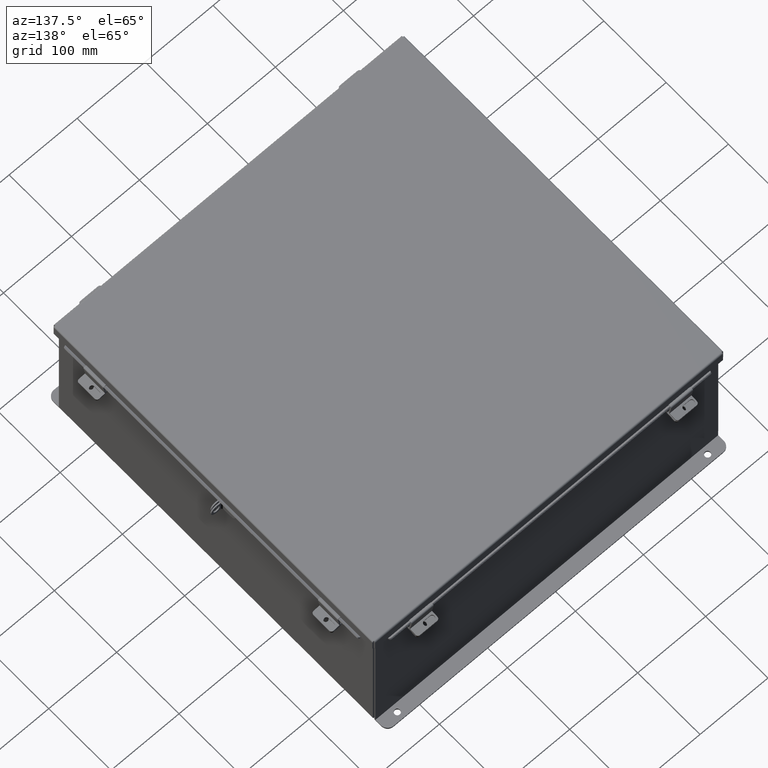
[diagram: clean part render]
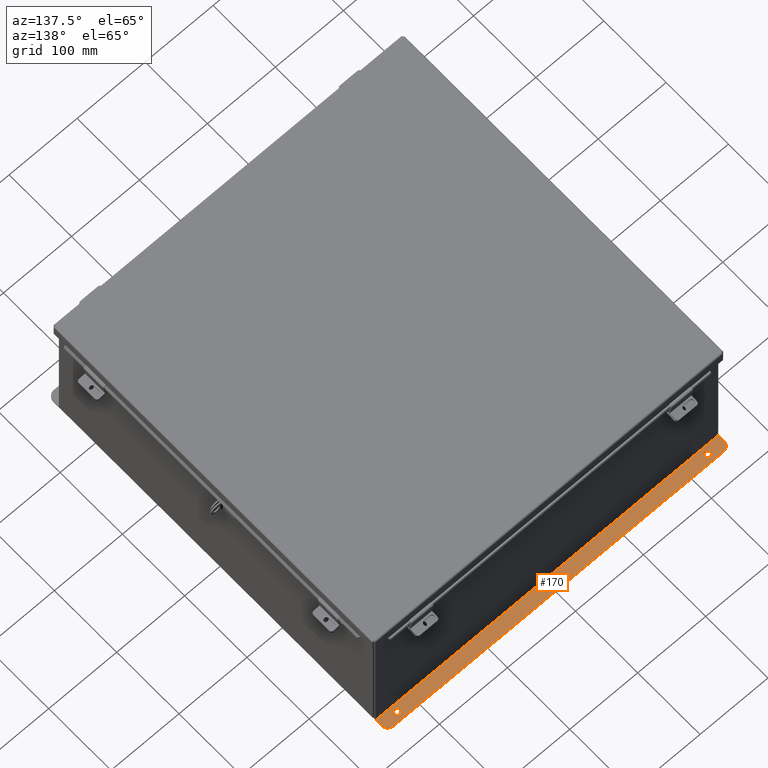
[diagram: same view with one face highlighted and labeled with its STEP entity id]
A machine part, auxiliary view. The second image highlights one B-rep face of the part: STEP entity #170.
In plain terms, the highlighted planar face has unit normal (0, 0, 1).
Its self-contained STEP definition (entity closure, byte-faithful):
#60 = DIRECTION ( 'NONE',  ( -0.0000000000000000000, 1.000000000000000000, -3.702694488566362300E-015 ) ) ;
#170 = ADVANCED_FACE ( 'NONE', ( #10029, #5442, #781 ), #13797, .T. ) ;
#408 = VECTOR ( 'NONE', #10891, 39.37007874015748100 ) ;
#477 = DIRECTION ( 'NONE',  ( 0.0000000000000000000, -1.000000000000000000, 4.370956789862820400E-015 ) ) ;
#781 = FACE_OUTER_BOUND ( 'NONE', #11266, .T. ) ;
#938 = LINE ( 'NONE', #7779, #408 ) ;
#1677 = VERTEX_POINT ( 'NONE', #11654 ) ;
#2113 = AXIS2_PLACEMENT_3D ( 'NONE', #3318, #17659, #20947 ) ;
#2523 = CARTESIAN_POINT ( 'NONE',  ( 8.987799999999998200, 0.3628000000000008400, -4.112300000000002100 ) ) ;
#3101 = ORIENTED_EDGE ( 'NONE', *, *, #8719, .T. ) ;
#3208 = AXIS2_PLACEMENT_3D ( 'NONE', #19823, #9454, #21549 ) ;
#3318 = CARTESIAN_POINT ( 'NONE',  ( 9.550299999999998200, 0.3628000000000008400, -4.112300000000002100 ) ) ;
#3501 = EDGE_CURVE ( 'NONE', #15866, #18772, #938, .T. ) ;
#3555 = CARTESIAN_POINT ( 'NONE',  ( 0.0000000000000000000, -1.529834876451987200E-014, -4.112300000000001200 ) ) ;
#3661 = EDGE_CURVE ( 'NONE', #1677, #18772, #11519, .T. ) ;
#3742 = CIRCLE ( 'NONE', #8922, 0.3750000000000000600 ) ;
#3773 = LINE ( 'NONE', #3847, #12436 ) ;
#3785 = ORIENTED_EDGE ( 'NONE', *, *, #17163, .F. ) ;
#3847 = CARTESIAN_POINT ( 'NONE',  ( 9.925299999999998200, 0.0000000000000000000, -4.112300000000001200 ) ) ;
#4273 = DIRECTION ( 'NONE',  ( 0.0000000000000000000, -1.000000000000000000, 3.502369222646487400E-015 ) ) ;
#4341 = CARTESIAN_POINT ( 'NONE',  ( 9.925299999999998200, 0.01300000000000010700, -4.112300000000001200 ) ) ;
#4342 = ORIENTED_EDGE ( 'NONE', *, *, #3501, .F. ) ;
#4427 = AXIS2_PLACEMENT_3D ( 'NONE', #2523, #14661, #4273 ) ;
#5083 = ORIENTED_EDGE ( 'NONE', *, *, #7445, .T. ) ;
#5442 = FACE_BOUND ( 'NONE', #10876, .T. ) ;
#5454 = CARTESIAN_POINT ( 'NONE',  ( 8.987799999999998200, 0.2068000000000006800, -4.112300000000001200 ) ) ;
#5458 = CIRCLE ( 'NONE', #7778, 0.1560000000000001700 ) ;
#5584 = VERTEX_POINT ( 'NONE', #20857 ) ;
#5630 = DIRECTION ( 'NONE',  ( -0.0000000000000000000, -1.000000000000000000, 3.702694488566362300E-015 ) ) ;
#6102 = DIRECTION ( 'NONE',  ( -1.000000000000000000, -2.752408485047568600E-017, 1.019132772786892100E-031 ) ) ;
#6111 = ORIENTED_EDGE ( 'NONE', *, *, #14126, .T. ) ;
#6647 = VERTEX_POINT ( 'NONE', #6654 ) ;
#6654 = CARTESIAN_POINT ( 'NONE',  ( -9.925300000000001800, 0.3628000000000008400, -4.112300000000002100 ) ) ;
#6916 = ORIENTED_EDGE ( 'NONE', *, *, #14557, .F. ) ;
#7309 = CARTESIAN_POINT ( 'NONE',  ( 8.987799999999998200, 0.5188000000000010400, -4.112300000000002100 ) ) ;
#7445 = EDGE_CURVE ( 'NONE', #7722, #17655, #5458, .T. ) ;
#7697 = DIRECTION ( 'NONE',  ( -0.0000000000000000000, -3.702694488566362300E-015, -1.000000000000000000 ) ) ;
#7722 = VERTEX_POINT ( 'NONE', #10001 ) ;
#7778 = AXIS2_PLACEMENT_3D ( 'NONE', #9339, #9268, #9195 ) ;
#7779 = CARTESIAN_POINT ( 'NONE',  ( 9.925299999999998200, 0.7378000000000011200, -4.112300000000003800 ) ) ;
#8587 = EDGE_LOOP ( 'NONE', ( #6111, #5083 ) ) ;
#8719 = EDGE_CURVE ( 'NONE', #21326, #10258, #9712, .T. ) ;
#8922 = AXIS2_PLACEMENT_3D ( 'NONE', #21228, #10875, #477 ) ;
#9013 = AXIS2_PLACEMENT_3D ( 'NONE', #18072, #7697, #19789 ) ;
#9195 = DIRECTION ( 'NONE',  ( 0.0000000000000000000, -1.000000000000000000, 3.502369222646487400E-015 ) ) ;
#9268 = DIRECTION ( 'NONE',  ( -0.0000000000000000000, -3.702694488566362300E-015, -1.000000000000000000 ) ) ;
#9339 = CARTESIAN_POINT ( 'NONE',  ( -8.987800000000000000, 0.3628000000000008400, -4.112300000000002100 ) ) ;
#9454 = DIRECTION ( 'NONE',  ( -0.0000000000000000000, -3.702694488566362300E-015, -1.000000000000000000 ) ) ;
#9462 = DIRECTION ( 'NONE',  ( 0.0000000000000000000, -1.000000000000000000, 3.702694488566362300E-015 ) ) ;
#9712 = CIRCLE ( 'NONE', #4427, 0.1560000000000001700 ) ;
#10001 = CARTESIAN_POINT ( 'NONE',  ( -8.987800000000000000, 0.2068000000000006800, -4.112300000000001200 ) ) ;
#10029 = FACE_BOUND ( 'NONE', #8587, .T. ) ;
#10049 = AXIS2_PLACEMENT_3D ( 'NONE', #3555, #20814, #9462 ) ;
#10258 = VERTEX_POINT ( 'NONE', #5454 ) ;
#10342 = ORIENTED_EDGE ( 'NONE', *, *, #18638, .F. ) ;
#10875 = DIRECTION ( 'NONE',  ( 0.0000000000000000000, 3.702694488566362300E-015, 1.000000000000000000 ) ) ;
#10876 = EDGE_LOOP ( 'NONE', ( #3101, #13369 ) ) ;
#10891 = DIRECTION ( 'NONE',  ( 1.000000000000000000, -0.0000000000000000000, -0.0000000000000000000 ) ) ;
#11131 = VECTOR ( 'NONE', #6102, 39.37007874015748100 ) ;
#11266 = EDGE_LOOP ( 'NONE', ( #3785, #20950, #4342, #18192, #6916, #10342 ) ) ;
#11519 = CIRCLE ( 'NONE', #2113, 0.3750000000000000600 ) ;
#11654 = CARTESIAN_POINT ( 'NONE',  ( 9.925299999999998200, 0.3628000000000008400, -4.112300000000002100 ) ) ;
#11708 = CIRCLE ( 'NONE', #9013, 0.1560000000000001700 ) ;
#12436 = VECTOR ( 'NONE', #5630, 39.37007874015748100 ) ;
#13369 = ORIENTED_EDGE ( 'NONE', *, *, #17303, .T. ) ;
#13797 = PLANE ( 'NONE',  #10049 ) ;
#14126 = EDGE_CURVE ( 'NONE', #17655, #7722, #11708, .T. ) ;
#14216 = CARTESIAN_POINT ( 'NONE',  ( -8.987800000000000000, 0.5188000000000010400, -4.112300000000002100 ) ) ;
#14557 = EDGE_CURVE ( 'NONE', #17668, #6647, #18483, .T. ) ;
#14661 = DIRECTION ( 'NONE',  ( -0.0000000000000000000, -3.702694488566362300E-015, -1.000000000000000000 ) ) ;
#15426 = CIRCLE ( 'NONE', #3208, 0.1560000000000001700 ) ;
#15866 = VERTEX_POINT ( 'NONE', #21093 ) ;
#15953 = CARTESIAN_POINT ( 'NONE',  ( -9.925300000000000000, 0.01299999999999792100, -4.112300000000001200 ) ) ;
#17163 = EDGE_CURVE ( 'NONE', #1677, #5584, #3773, .T. ) ;
#17303 = EDGE_CURVE ( 'NONE', #10258, #21326, #15426, .T. ) ;
#17655 = VERTEX_POINT ( 'NONE', #14216 ) ;
#17659 = DIRECTION ( 'NONE',  ( 0.0000000000000000000, 3.702694488566362300E-015, 1.000000000000000000 ) ) ;
#17668 = VERTEX_POINT ( 'NONE', #15953 ) ;
#17955 = VECTOR ( 'NONE', #60, 39.37007874015748100 ) ;
#18072 = CARTESIAN_POINT ( 'NONE',  ( -8.987800000000000000, 0.3628000000000008400, -4.112300000000002100 ) ) ;
#18192 = ORIENTED_EDGE ( 'NONE', *, *, #20328, .T. ) ;
#18483 = LINE ( 'NONE', #19079, #17955 ) ;
#18638 = EDGE_CURVE ( 'NONE', #5584, #17668, #20319, .T. ) ;
#18772 = VERTEX_POINT ( 'NONE', #20227 ) ;
#19079 = CARTESIAN_POINT ( 'NONE',  ( -9.925300000000001800, 0.7378000000000011200, -4.112300000000003800 ) ) ;
#19789 = DIRECTION ( 'NONE',  ( 0.0000000000000000000, -1.000000000000000000, 3.502369222646487400E-015 ) ) ;
#19823 = CARTESIAN_POINT ( 'NONE',  ( 8.987799999999998200, 0.3628000000000008400, -4.112300000000002100 ) ) ;
#20227 = CARTESIAN_POINT ( 'NONE',  ( 9.550299999999998200, 0.7378000000000011200, -4.112300000000003800 ) ) ;
#20319 = LINE ( 'NONE', #4341, #11131 ) ;
#20328 = EDGE_CURVE ( 'NONE', #15866, #6647, #3742, .T. ) ;
#20814 = DIRECTION ( 'NONE',  ( 0.0000000000000000000, 3.702694488566362300E-015, 1.000000000000000000 ) ) ;
#20857 = CARTESIAN_POINT ( 'NONE',  ( 9.925299999999998200, 0.01300000000000010700, -4.112300000000001200 ) ) ;
#20947 = DIRECTION ( 'NONE',  ( 0.0000000000000000000, -1.000000000000000000, 4.370956789862820400E-015 ) ) ;
#20950 = ORIENTED_EDGE ( 'NONE', *, *, #3661, .T. ) ;
#21093 = CARTESIAN_POINT ( 'NONE',  ( -9.550300000000001800, 0.7378000000000011200, -4.112300000000003800 ) ) ;
#21228 = CARTESIAN_POINT ( 'NONE',  ( -9.550300000000001800, 0.3628000000000008400, -4.112300000000002100 ) ) ;
#21326 = VERTEX_POINT ( 'NONE', #7309 ) ;
#21549 = DIRECTION ( 'NONE',  ( 0.0000000000000000000, -1.000000000000000000, 3.502369222646487400E-015 ) ) ;